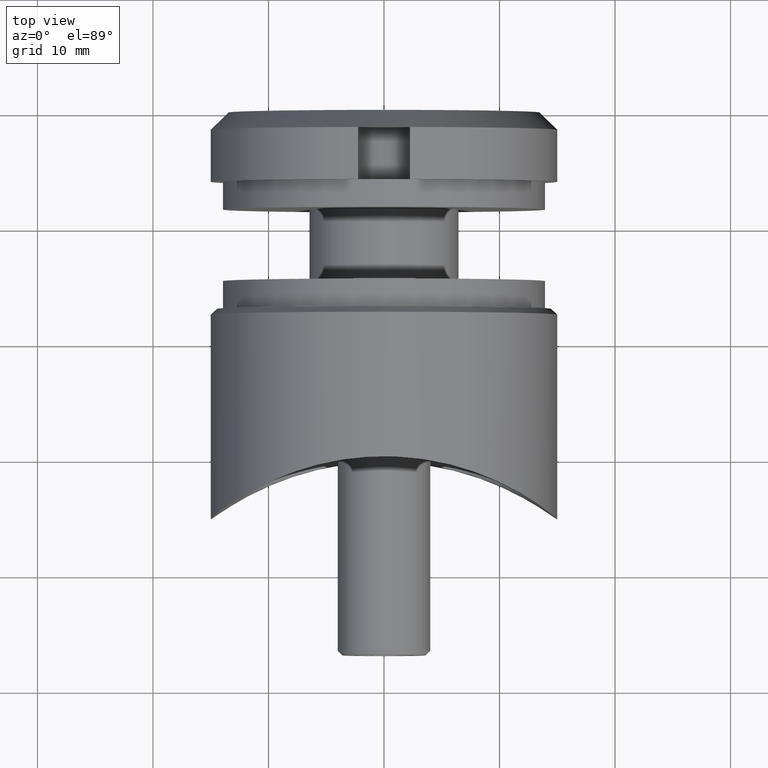
[diagram: clean part render]
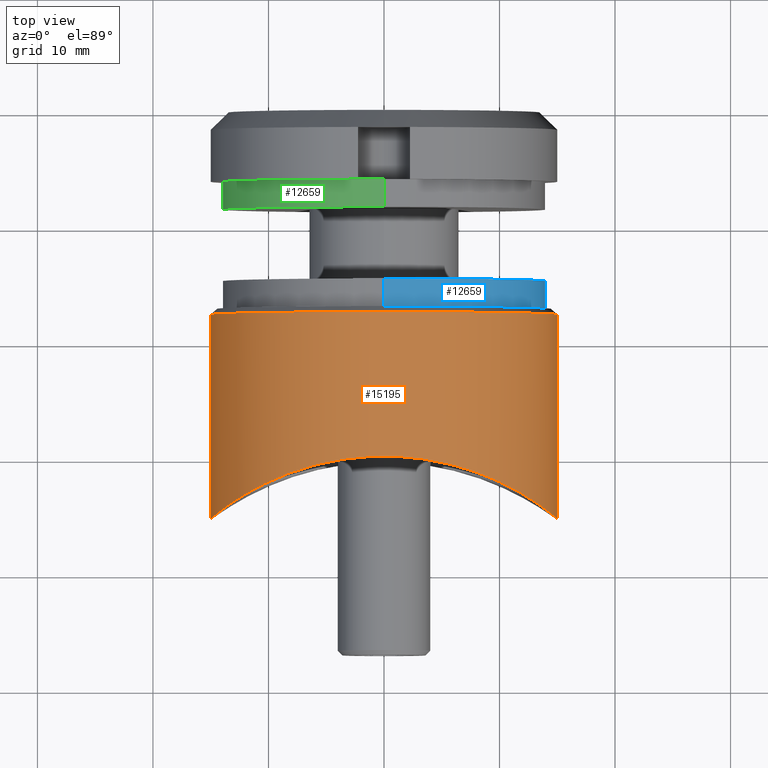
[diagram: same view with three faces highlighted in distinct colors, each labeled with its STEP entity id]
A machine part, top view with three faces highlighted in distinct colors.
Their STEP definitions:

[orange] entity #15195 — the highlighted cylindrical surface (partial cylindrical patch) has radius 15 mm, axis along (-0, -1, -0).
#178 = VECTOR ( 'NONE', #16218, 1000.000000000000000 ) ;
#423 = VECTOR ( 'NONE', #4878, 1000.000000000000000 ) ;
#489 = CARTESIAN_POINT ( 'NONE',  ( -14.17441178303835692, -4.596422829497861073, 4.932994810024090349 ) ) ;
#545 = CARTESIAN_POINT ( 'NONE',  ( -14.94816982320064547, -5.182243785809308889, 1.271101129031266819 ) ) ;
#608 = CARTESIAN_POINT ( 'NONE',  ( 15.00000000000000533, -5.223233239668225281, 1.021895817944734830 ) ) ;
#669 = CARTESIAN_POINT ( 'NONE',  ( -14.00512488840376690, -4.474325915150763500, 5.393734666330228578 ) ) ;
#687 = CARTESIAN_POINT ( 'NONE',  ( -2.571758278209441267E-15, 12.49999999999999645, 0.000000000000000000 ) ) ;
#717 = CARTESIAN_POINT ( 'NONE',  ( -15.00000000000000000, -5.223233239668223504, 0.2548730072284852155 ) ) ;
#797 = DIRECTION ( 'NONE',  ( 0.000000000000000000, 0.000000000000000000, 1.000000000000000000 ) ) ;
#864 = DIRECTION ( 'NONE',  ( -0.000000000000000000, -1.000000000000000000, -0.000000000000000000 ) ) ;
#1826 = CARTESIAN_POINT ( 'NONE',  ( -3.953264256672655907, -0.3207936753512347638, 14.47834549283606442 ) ) ;
#1899 = CARTESIAN_POINT ( 'NONE',  ( 5.415336516930774557, -0.6103990729750278232, 13.99693853036102631 ) ) ;
#1952 = CARTESIAN_POINT ( 'NONE',  ( 6.768416924014591274, -0.9492293678958053649, 13.42196571296279828 ) ) ;
#2007 = CARTESIAN_POINT ( 'NONE',  ( 13.42408808881639182, -4.072864125801368473, 6.710179037716913264 ) ) ;
#2466 = CYLINDRICAL_SURFACE ( 'NONE', #8070, 15.00000000000000178 ) ;
#2531 = CARTESIAN_POINT ( 'NONE',  ( -15.00000000000000355, -5.223233239668218175, 7.953107717303858796E-16 ) ) ;
#3183 = CARTESIAN_POINT ( 'NONE',  ( 11.90772299405839085, -3.130408086327296946, 9.172587869602338628 ) ) ;
#3199 = EDGE_CURVE ( 'NONE', #12325, #16188, #4597, .T. ) ;
#3235 = CARTESIAN_POINT ( 'NONE',  ( 1.046343775275990318, -0.001340820921707284877, 14.99784127542971035 ) ) ;
#3296 = CARTESIAN_POINT ( 'NONE',  ( 14.01177618914588052, -4.479061309830738580, 5.376552028559488328 ) ) ;
#3413 = CARTESIAN_POINT ( 'NONE',  ( 14.89677242330901841, -5.140231980804690792, 2.018858685569380196 ) ) ;
#4488 = CARTESIAN_POINT ( 'NONE',  ( -0.9881472614555303347, -0.01497922456351579411, 14.97592328143280760 ) ) ;
#4553 = CARTESIAN_POINT ( 'NONE',  ( -15.00000000000000355, -5.223233239668218175, 7.953107717303858796E-16 ) ) ;
#4597 = LINE ( 'NONE', #7193, #423 ) ;
#4617 = CARTESIAN_POINT ( 'NONE',  ( 3.507366372086760720, -0.2509761939255489294, 14.59270795079829774 ) ) ;
#4675 = CARTESIAN_POINT ( 'NONE',  ( -9.934043975513116465, -2.134114931380683533, 11.24921498290755473 ) ) ;
#4728 = CARTESIAN_POINT ( 'NONE',  ( -14.47059313540345649, -4.814585241905631641, 3.981246224547752011 ) ) ;
#4790 = ORIENTED_EDGE ( 'NONE', *, *, #14585, .T. ) ;
#4878 = DIRECTION ( 'NONE',  ( -1.650797095189058802E-31, -1.000000000000000000, -0.000000000000000000 ) ) ;
#5105 = ORIENTED_EDGE ( 'NONE', *, *, #14047, .T. ) ;
#5823 = CARTESIAN_POINT ( 'NONE',  ( -4.910125186937063901, -0.4994177028477248537, 14.18243481006058104 ) ) ;
#5881 = CARTESIAN_POINT ( 'NONE',  ( 13.63350566533036456, -4.215025101582938305, 6.274129976652349505 ) ) ;
#5931 = CARTESIAN_POINT ( 'NONE',  ( -3.468983803743604710, -0.2453426632490890713, 14.60192778728800000 ) ) ;
#6000 = CARTESIAN_POINT ( 'NONE',  ( -8.807531389525012244, -1.659228084666861225, 12.15171984718018017 ) ) ;
#6439 = CARTESIAN_POINT ( 'NONE',  ( -7.347880794884114806E-16, 12.49999999999999645, 15.00000000000000178 ) ) ;
#6884 = CARTESIAN_POINT ( 'NONE',  ( 15.00000000000000000, 12.49999999999999645, 0.000000000000000000 ) ) ;
#7113 = CARTESIAN_POINT ( 'NONE',  ( -1.992535050667113339, -0.07708021629001104991, 14.87563501883352401 ) ) ;
#7167 = CARTESIAN_POINT ( 'NONE',  ( 15.00000000000000000, -5.223233239668216399, 4.244252637936144834E-16 ) ) ;
#7193 = CARTESIAN_POINT ( 'NONE',  ( 15.00000000000000000, 10.49999999999999467, 0.000000000000000000 ) ) ;
#7228 = CARTESIAN_POINT ( 'NONE',  ( 14.59896615537670073, -4.911799996152555359, 3.481033172810251930 ) ) ;
#7299 = CARTESIAN_POINT ( 'NONE',  ( -12.17811424766097694, -3.293022393869229347, 8.770593220560321868 ) ) ;
#7349 = CARTESIAN_POINT ( 'NONE',  ( -10.28668088508605472, -2.297148290753265432, 10.92755348864548104 ) ) ;
#7540 = DIRECTION ( 'NONE',  ( -8.881784197001251337E-16, 0.000000000000000000, 1.000000000000000000 ) ) ;
#7705 = CARTESIAN_POINT ( 'NONE',  ( -2.571758278209441661E-15, 10.49999999999999467, 0.000000000000000000 ) ) ;
#8070 = AXIS2_PLACEMENT_3D ( 'NONE', #7705, #14542, #15603 ) ;
#8455 = CARTESIAN_POINT ( 'NONE',  ( -14.79555157161147427, -5.062567812802406308, 2.518128042953883039 ) ) ;
#8576 = CARTESIAN_POINT ( 'NONE',  ( 10.29513365321627916, -2.301138278592789188, 10.91957281778760702 ) ) ;
#8589 = AXIS2_PLACEMENT_3D ( 'NONE', #687, #864, #797 ) ;
#8632 = CARTESIAN_POINT ( 'NONE',  ( 3.991289229544212169, -0.3271125767916087668, 14.46795449258982913 ) ) ;
#8647 = DIRECTION ( 'NONE',  ( -0.000000000000000000, -1.000000000000000000, -0.000000000000000000 ) ) ;
#8691 = CARTESIAN_POINT ( 'NONE',  ( -10.95975786357976567, -2.626834827804151562, 10.25236248142370421 ) ) ;
#9049 = CARTESIAN_POINT ( 'NONE',  ( -15.00000000000000355, 12.49999999999999645, 1.836970198721029983E-15 ) ) ;
#9471 = CARTESIAN_POINT ( 'NONE',  ( -15.00000000000000355, 10.49999999999999467, 1.836970198721029983E-15 ) ) ;
#9787 = CARTESIAN_POINT ( 'NONE',  ( 12.96526474905854798, -3.773556838492260646, 7.558740220522023101 ) ) ;
#9841 = CARTESIAN_POINT ( 'NONE',  ( -14.96751323116863297, -5.197524678547813970, 1.018891802155079684 ) ) ;
#9894 = CARTESIAN_POINT ( 'NONE',  ( -7.598067121482900532, -1.210261594397698648, 12.96984940948523146 ) ) ;
#9915 = CARTESIAN_POINT ( 'NONE',  ( -2.571758278209441267E-15, 12.49999999999999645, 0.000000000000000000 ) ) ;
#10025 = CARTESIAN_POINT ( 'NONE',  ( 14.18064052310420742, -4.600947110187461497, 4.915031830934255552 ) ) ;
#10348 = FACE_OUTER_BOUND ( 'NONE', #17037, .T. ) ;
#10786 = EDGE_CURVE ( 'NONE', #12325, #11741, #13094, .T. ) ;
#11158 = CARTESIAN_POINT ( 'NONE',  ( 14.47546554301700894, -4.818240332367037304, 3.963458194245205402 ) ) ;
#11187 = LINE ( 'NONE', #9471, #178 ) ;
#11227 = VERTEX_POINT ( 'NONE', #2531 ) ;
#11287 = CARTESIAN_POINT ( 'NONE',  ( 12.71522209360382938, -3.616021333154390671, 7.972182003224163260 ) ) ;
#11392 = ORIENTED_EDGE ( 'NONE', *, *, #10786, .T. ) ;
#11741 = VERTEX_POINT ( 'NONE', #6439 ) ;
#11910 = AXIS2_PLACEMENT_3D ( 'NONE', #9915, #8647, #7540 ) ;
#12325 = VERTEX_POINT ( 'NONE', #6884 ) ;
#12451 = CARTESIAN_POINT ( 'NONE',  ( 4.949838241580141407, -0.5076765889025407485, 14.16866960217919136 ) ) ;
#12511 = CARTESIAN_POINT ( 'NONE',  ( -14.99343907281291166, -5.218028155912829646, 0.5112510142327618690 ) ) ;
#12566 = CARTESIAN_POINT ( 'NONE',  ( 9.199923121931481873, -1.817349213283809162, 11.85722148945196253 ) ) ;
#12625 = CARTESIAN_POINT ( 'NONE',  ( -6.742885511560814393, -0.9415457676267626752, 13.43524475428275089 ) ) ;
#12694 = CARTESIAN_POINT ( 'NONE',  ( -13.43773073958851683, -4.078562883981234677, 6.735798373804979811 ) ) ;
#13094 = CIRCLE ( 'NONE', #11910, 15.00000000000000178 ) ;
#13369 = CARTESIAN_POINT ( 'NONE',  ( 15.00000000000000000, -5.223233239668216399, 4.244252637936144834E-16 ) ) ;
#13783 = CARTESIAN_POINT ( 'NONE',  ( -2.488618784514591287, -0.1234882356286325644, 14.80057162008177407 ) ) ;
#13837 = CARTESIAN_POINT ( 'NONE',  ( 7.615651231416427080, -1.216438077072496959, 12.95877444684131774 ) ) ;
#13906 = CARTESIAN_POINT ( 'NONE',  ( -0.4760444225358887449, 0.0006397548513774525608, 15.00103000672063480 ) ) ;
#13965 = CARTESIAN_POINT ( 'NONE',  ( -14.87148853911732616, -5.121979711810116243, 2.023053435968848568 ) ) ;
#14047 = EDGE_CURVE ( 'NONE', #16942, #11227, #11187, .T. ) ;
#14542 = DIRECTION ( 'NONE',  ( -1.650797095189058802E-31, -1.000000000000000000, -0.000000000000000000 ) ) ;
#14585 = EDGE_CURVE ( 'NONE', #11741, #16942, #16177, .T. ) ;
#15067 = CARTESIAN_POINT ( 'NONE',  ( 9.942124389353512726, -2.137729802733046469, 11.24217281160511028 ) ) ;
#15132 = CARTESIAN_POINT ( 'NONE',  ( -5.380275658633196123, -0.6022990069802311996, 14.01055710864110893 ) ) ;
#15194 = CARTESIAN_POINT ( 'NONE',  ( 8.811943117464197783, -1.661044154243030757, 12.14831894565029202 ) ) ;
#15195 = ADVANCED_FACE ( 'NONE', ( #10348 ), #2466, .T. ) ;
#15252 = CARTESIAN_POINT ( 'NONE',  ( -11.28019664777126785, -2.793499382928500641, 9.898837215287887403 ) ) ;
#15303 = CARTESIAN_POINT ( 'NONE',  ( 2.041753065196188821, -0.06632138924379457623, 14.89383165079119564 ) ) ;
#15335 = ORIENTED_EDGE ( 'NONE', *, *, #3199, .F. ) ;
#15455 = ORIENTED_EDGE ( 'NONE', *, *, #17178, .F. ) ;
#15603 = DIRECTION ( 'NONE',  ( 1.000000000000000000, 0.000000000000000000, 0.000000000000000000 ) ) ;
#16177 = CIRCLE ( 'NONE', #8589, 15.00000000000000178 ) ;
#16188 = VERTEX_POINT ( 'NONE', #13369 ) ;
#16218 = DIRECTION ( 'NONE',  ( -1.650797095189058802E-31, -1.000000000000000000, -0.000000000000000000 ) ) ;
#16397 = CARTESIAN_POINT ( 'NONE',  ( -14.59533937944400428, -4.909041546535874545, 3.496481595515231966 ) ) ;
#16431 = B_SPLINE_CURVE_WITH_KNOTS ( 'NONE', 3,
 ( #7167, #608, #3413, #7228, #11158, #10025, #3296, #5881, #2007, #9787, #11287, #3183, #16508, #8576, #15067, #12566, #15194, #13837, #1952, #1899, #12451, #8632, #4617, #15303, #3235, #13906, #4488, #7113, #13783, #5931, #1826, #5823, #15132, #12625, #9894, #6000, #16635, #4675, #7349, #8691, #15252, #16454, #7299, #16566, #12694, #669, #489, #4728, #16397, #8455, #13965, #545, #9841, #12511, #717, #4553 ),
 .UNSPECIFIED., .F., .F.,
 ( 4, 2, 2, 2, 2, 2, 2, 2, 2, 2, 2, 2, 2, 2, 2, 2, 2, 2, 2, 2, 2, 2, 2, 2, 2, 2, 2, 4 ),
 ( 1.176574343197026339E-18, 0.003012748219772880438, 0.004519122329659319356, 0.006025496439545759142, 0.007531870549432198927, 0.009038244659318638713, 0.01205099287909151308, 0.01355736698897794940, 0.01506374109886438745, 0.01807648931863725661, 0.01958286342852369119, 0.02108923753841012577, 0.02410198575818299493, 0.02560835986806942605, 0.02711473397795586410, 0.02862110808784229521, 0.03012748219772873326, 0.03314023041750160242, 0.03464660452738804047, 0.03615297863727447852, 0.03765935274716091657, 0.03916572685704735463, 0.04217847507682023767, 0.04368484918670667572, 0.04519122329659311377, 0.04669759740647955876, 0.04745078446142277778, 0.04820397151636598987 ),
 .UNSPECIFIED. ) ;
#16454 = CARTESIAN_POINT ( 'NONE',  ( -11.88925168846098401, -3.126473908789867195, 9.158357326266887810 ) ) ;
#16508 = CARTESIAN_POINT ( 'NONE',  ( 11.30314425082605290, -2.795338403991114440, 9.906882450459768563 ) ) ;
#16566 = CARTESIAN_POINT ( 'NONE',  ( -12.98081412392341782, -3.775729690439332042, 7.577437096976650466 ) ) ;
#16635 = CARTESIAN_POINT ( 'NONE',  ( -9.195054071717573052, -1.815376527009158636, 11.86090418380025291 ) ) ;
#16942 = VERTEX_POINT ( 'NONE', #9049 ) ;
#17037 = EDGE_LOOP ( 'NONE', ( #11392, #4790, #5105, #15455, #15335 ) ) ;
#17178 = EDGE_CURVE ( 'NONE', #16188, #11227, #16431, .T. ) ;

[blue] entity #12659 — the highlighted cylindrical surface (partial cylindrical patch) has radius 14 mm, axis along (0, -1, 0).
#494 = DIRECTION ( 'NONE',  ( 0.000000000000000000, 0.000000000000000000, -1.000000000000000000 ) ) ;
#996 = EDGE_CURVE ( 'NONE', #2935, #6374, #14393, .T. ) ;
#1424 = EDGE_CURVE ( 'NONE', #6374, #12903, #10641, .T. ) ;
#1496 = CIRCLE ( 'NONE', #7589, 14.00000000000018829 ) ;
#1635 = DIRECTION ( 'NONE',  ( 0.000000000000000000, -1.000000000000000000, 0.000000000000000000 ) ) ;
#2343 = CARTESIAN_POINT ( 'NONE',  ( 0.000000000000000000, 0.000000000000000000, -14.00000000000018829 ) ) ;
#2497 = ORIENTED_EDGE ( 'NONE', *, *, #1424, .F. ) ;
#2935 = VERTEX_POINT ( 'NONE', #13228 ) ;
#3195 = VECTOR ( 'NONE', #5736, 1000.000000000000000 ) ;
#3331 = ORIENTED_EDGE ( 'NONE', *, *, #8870, .T. ) ;
#4028 = DIRECTION ( 'NONE',  ( 0.000000000000000000, -1.000000000000000000, 0.000000000000000000 ) ) ;
#4164 = ORIENTED_EDGE ( 'NONE', *, *, #996, .F. ) ;
#4810 = LINE ( 'NONE', #10104, #14984 ) ;
#4990 = AXIS2_PLACEMENT_3D ( 'NONE', #9596, #1635, #16322 ) ;
#5164 = VERTEX_POINT ( 'NONE', #15091 ) ;
#5337 = DIRECTION ( 'NONE',  ( 0.000000000000000000, 0.000000000000000000, -1.000000000000000000 ) ) ;
#5736 = DIRECTION ( 'NONE',  ( 0.000000000000000000, -1.000000000000000000, 0.000000000000000000 ) ) ;
#5885 = DIRECTION ( 'NONE',  ( 0.000000000000000000, -1.000000000000000000, 0.000000000000000000 ) ) ;
#6374 = VERTEX_POINT ( 'NONE', #2343 ) ;
#7589 = AXIS2_PLACEMENT_3D ( 'NONE', #11163, #5885, #494 ) ;
#8379 = CARTESIAN_POINT ( 'NONE',  ( 0.000000000000000000, 0.000000000000000000, -14.00000000000018829 ) ) ;
#8870 = EDGE_CURVE ( 'NONE', #2935, #5164, #1496, .T. ) ;
#9596 = CARTESIAN_POINT ( 'NONE',  ( 0.000000000000000000, 0.000000000000000000, 0.000000000000000000 ) ) ;
#9645 = EDGE_LOOP ( 'NONE', ( #3331, #16117, #2497, #4164 ) ) ;
#9770 = CARTESIAN_POINT ( 'NONE',  ( 1.714505518806294244E-15, 0.000000000000000000, 14.00000000000000000 ) ) ;
#10104 = CARTESIAN_POINT ( 'NONE',  ( 1.714505518806317318E-15, 0.000000000000000000, 14.00000000000018829 ) ) ;
#10272 = AXIS2_PLACEMENT_3D ( 'NONE', #10465, #4028, #5337 ) ;
#10465 = CARTESIAN_POINT ( 'NONE',  ( 0.000000000000000000, 0.000000000000000000, 0.000000000000000000 ) ) ;
#10641 = CIRCLE ( 'NONE', #4990, 14.00000000000018829 ) ;
#11163 = CARTESIAN_POINT ( 'NONE',  ( 0.000000000000000000, 2.399999999999999467, 0.000000000000000000 ) ) ;
#11210 = FACE_OUTER_BOUND ( 'NONE', #9645, .T. ) ;
#11538 = DIRECTION ( 'NONE',  ( 0.000000000000000000, -1.000000000000000000, 0.000000000000000000 ) ) ;
#11684 = EDGE_CURVE ( 'NONE', #5164, #12903, #4810, .T. ) ;
#12242 = CYLINDRICAL_SURFACE ( 'NONE', #10272, 14.00000000000018829 ) ;
#12659 = ADVANCED_FACE ( 'NONE', ( #11210 ), #12242, .T. ) ;
#12903 = VERTEX_POINT ( 'NONE', #9770 ) ;
#13228 = CARTESIAN_POINT ( 'NONE',  ( 0.000000000000000000, 2.399999999999999467, -14.00000000000018829 ) ) ;
#14393 = LINE ( 'NONE', #8379, #3195 ) ;
#14984 = VECTOR ( 'NONE', #11538, 1000.000000000000000 ) ;
#15091 = CARTESIAN_POINT ( 'NONE',  ( 1.714505518806294244E-15, 2.399999999999999467, 14.00000000000000000 ) ) ;
#16117 = ORIENTED_EDGE ( 'NONE', *, *, #11684, .T. ) ;
#16322 = DIRECTION ( 'NONE',  ( 0.000000000000000000, 0.000000000000000000, -1.000000000000000000 ) ) ;

[green] entity #12659 — the highlighted cylindrical surface (partial cylindrical patch) has radius 14 mm, axis along (0, 1, 0).
#494 = DIRECTION ( 'NONE',  ( 0.000000000000000000, 0.000000000000000000, -1.000000000000000000 ) ) ;
#996 = EDGE_CURVE ( 'NONE', #2935, #6374, #14393, .T. ) ;
#1424 = EDGE_CURVE ( 'NONE', #6374, #12903, #10641, .T. ) ;
#1496 = CIRCLE ( 'NONE', #7589, 14.00000000000018829 ) ;
#1635 = DIRECTION ( 'NONE',  ( 0.000000000000000000, -1.000000000000000000, 0.000000000000000000 ) ) ;
#2343 = CARTESIAN_POINT ( 'NONE',  ( 0.000000000000000000, 0.000000000000000000, -14.00000000000018829 ) ) ;
#2497 = ORIENTED_EDGE ( 'NONE', *, *, #1424, .F. ) ;
#2935 = VERTEX_POINT ( 'NONE', #13228 ) ;
#3195 = VECTOR ( 'NONE', #5736, 1000.000000000000000 ) ;
#3331 = ORIENTED_EDGE ( 'NONE', *, *, #8870, .T. ) ;
#4028 = DIRECTION ( 'NONE',  ( 0.000000000000000000, -1.000000000000000000, 0.000000000000000000 ) ) ;
#4164 = ORIENTED_EDGE ( 'NONE', *, *, #996, .F. ) ;
#4810 = LINE ( 'NONE', #10104, #14984 ) ;
#4990 = AXIS2_PLACEMENT_3D ( 'NONE', #9596, #1635, #16322 ) ;
#5164 = VERTEX_POINT ( 'NONE', #15091 ) ;
#5337 = DIRECTION ( 'NONE',  ( 0.000000000000000000, 0.000000000000000000, -1.000000000000000000 ) ) ;
#5736 = DIRECTION ( 'NONE',  ( 0.000000000000000000, -1.000000000000000000, 0.000000000000000000 ) ) ;
#5885 = DIRECTION ( 'NONE',  ( 0.000000000000000000, -1.000000000000000000, 0.000000000000000000 ) ) ;
#6374 = VERTEX_POINT ( 'NONE', #2343 ) ;
#7589 = AXIS2_PLACEMENT_3D ( 'NONE', #11163, #5885, #494 ) ;
#8379 = CARTESIAN_POINT ( 'NONE',  ( 0.000000000000000000, 0.000000000000000000, -14.00000000000018829 ) ) ;
#8870 = EDGE_CURVE ( 'NONE', #2935, #5164, #1496, .T. ) ;
#9596 = CARTESIAN_POINT ( 'NONE',  ( 0.000000000000000000, 0.000000000000000000, 0.000000000000000000 ) ) ;
#9645 = EDGE_LOOP ( 'NONE', ( #3331, #16117, #2497, #4164 ) ) ;
#9770 = CARTESIAN_POINT ( 'NONE',  ( 1.714505518806294244E-15, 0.000000000000000000, 14.00000000000000000 ) ) ;
#10104 = CARTESIAN_POINT ( 'NONE',  ( 1.714505518806317318E-15, 0.000000000000000000, 14.00000000000018829 ) ) ;
#10272 = AXIS2_PLACEMENT_3D ( 'NONE', #10465, #4028, #5337 ) ;
#10465 = CARTESIAN_POINT ( 'NONE',  ( 0.000000000000000000, 0.000000000000000000, 0.000000000000000000 ) ) ;
#10641 = CIRCLE ( 'NONE', #4990, 14.00000000000018829 ) ;
#11163 = CARTESIAN_POINT ( 'NONE',  ( 0.000000000000000000, 2.399999999999999467, 0.000000000000000000 ) ) ;
#11210 = FACE_OUTER_BOUND ( 'NONE', #9645, .T. ) ;
#11538 = DIRECTION ( 'NONE',  ( 0.000000000000000000, -1.000000000000000000, 0.000000000000000000 ) ) ;
#11684 = EDGE_CURVE ( 'NONE', #5164, #12903, #4810, .T. ) ;
#12242 = CYLINDRICAL_SURFACE ( 'NONE', #10272, 14.00000000000018829 ) ;
#12659 = ADVANCED_FACE ( 'NONE', ( #11210 ), #12242, .T. ) ;
#12903 = VERTEX_POINT ( 'NONE', #9770 ) ;
#13228 = CARTESIAN_POINT ( 'NONE',  ( 0.000000000000000000, 2.399999999999999467, -14.00000000000018829 ) ) ;
#14393 = LINE ( 'NONE', #8379, #3195 ) ;
#14984 = VECTOR ( 'NONE', #11538, 1000.000000000000000 ) ;
#15091 = CARTESIAN_POINT ( 'NONE',  ( 1.714505518806294244E-15, 2.399999999999999467, 14.00000000000000000 ) ) ;
#16117 = ORIENTED_EDGE ( 'NONE', *, *, #11684, .T. ) ;
#16322 = DIRECTION ( 'NONE',  ( 0.000000000000000000, 0.000000000000000000, -1.000000000000000000 ) ) ;